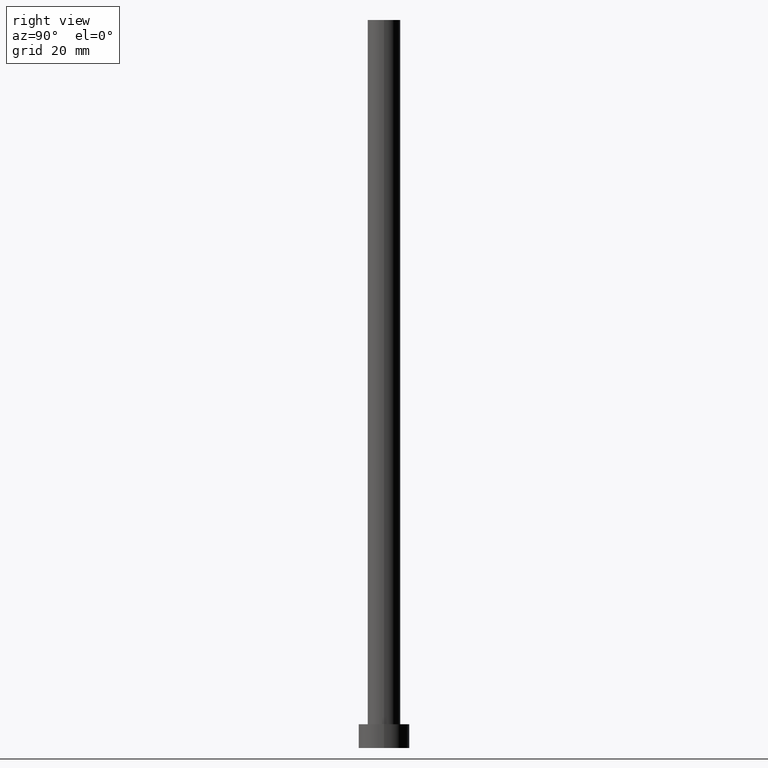
[diagram: clean part render]
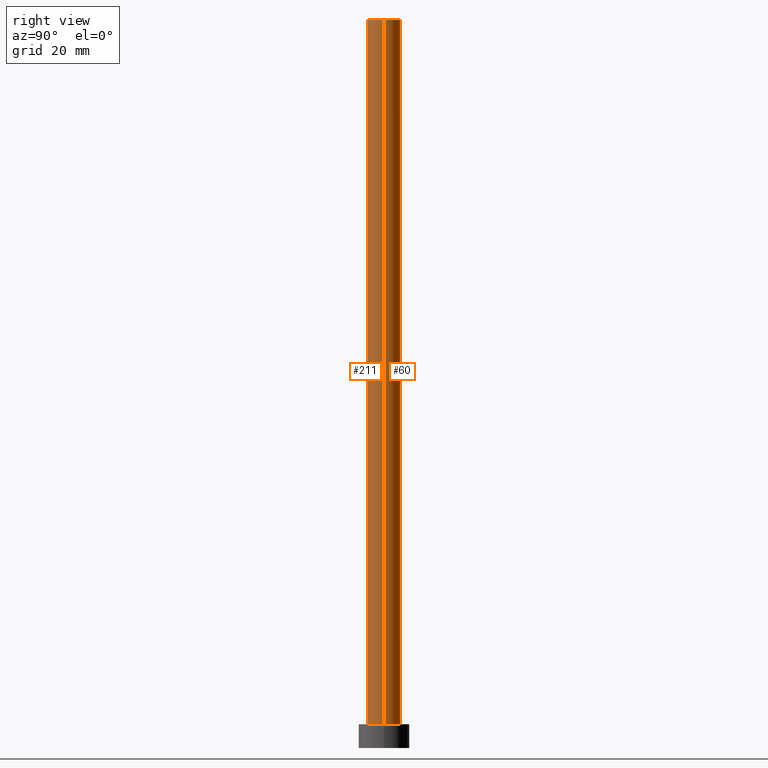
[diagram: same view with one multi-face feature highlighted, each face labeled with its STEP entity id]
A machine part, right view. The highlighted faces form ONE feature: a constant-radius fillet chain: 2 tangent blend faces with common blend radius 4.5 mm. The faces share edges in the B-rep.
Their STEP definitions:
[1] entity #60 (Cylinder):
#4 = DIRECTION ( 'NONE',  ( -0.000000000000000000, -0.000000000000000000, -1.000000000000000000 ) ) ;
#27 = CARTESIAN_POINT ( 'NONE',  ( 4.500000000000000888, 5.510910596163089556E-16, 6.500000000000000000 ) ) ;
#33 = CYLINDRICAL_SURFACE ( 'NONE', #214, 4.500000000000000888 ) ;
#37 = ORIENTED_EDGE ( 'NONE', *, *, #243, .T. ) ;
#49 = DIRECTION ( 'NONE',  ( 0.000000000000000000, 0.000000000000000000, 1.000000000000000000 ) ) ;
#50 = LINE ( 'NONE', #51, #159 ) ;
#51 = CARTESIAN_POINT ( 'NONE',  ( 4.500000000000000888, 5.510910596163089556E-16, 200.0000000000000000 ) ) ;
#55 = ORIENTED_EDGE ( 'NONE', *, *, #111, .F. ) ;
#60 = ADVANCED_FACE ( 'NONE', ( #160 ), #33, .T. ) ;
#61 = CARTESIAN_POINT ( 'NONE',  ( 4.500000000000000888, 5.510910596163089556E-16, 200.0000000000000000 ) ) ;
#66 = EDGE_CURVE ( 'NONE', #209, #146, #50, .T. ) ;
#72 = ORIENTED_EDGE ( 'NONE', *, *, #66, .T. ) ;
#74 = DIRECTION ( 'NONE',  ( 0.000000000000000000, 0.000000000000000000, 1.000000000000000000 ) ) ;
#83 = DIRECTION ( 'NONE',  ( -0.000000000000000000, -0.000000000000000000, -1.000000000000000000 ) ) ;
#87 = CIRCLE ( 'NONE', #234, 4.500000000000000888 ) ;
#110 = AXIS2_PLACEMENT_3D ( 'NONE', #225, #74, #228 ) ;
#111 = EDGE_CURVE ( 'NONE', #117, #206, #122, .T. ) ;
#117 = VERTEX_POINT ( 'NONE', #180 ) ;
#122 = LINE ( 'NONE', #235, #124 ) ;
#124 = VECTOR ( 'NONE', #192, 1000.000000000000000 ) ;
#125 = DIRECTION ( 'NONE',  ( 1.000000000000000000, 0.000000000000000000, 0.000000000000000000 ) ) ;
#136 = CIRCLE ( 'NONE', #110, 4.500000000000000888 ) ;
#142 = CARTESIAN_POINT ( 'NONE',  ( 0.000000000000000000, 0.000000000000000000, 200.0000000000000000 ) ) ;
#146 = VERTEX_POINT ( 'NONE', #27 ) ;
#159 = VECTOR ( 'NONE', #83, 1000.000000000000000 ) ;
#160 = FACE_OUTER_BOUND ( 'NONE', #218, .T. ) ;
#169 = EDGE_CURVE ( 'NONE', #209, #117, #87, .T. ) ;
#179 = CARTESIAN_POINT ( 'NONE',  ( 0.000000000000000000, 0.000000000000000000, 200.0000000000000000 ) ) ;
#180 = CARTESIAN_POINT ( 'NONE',  ( -4.500000000000000888, 0.000000000000000000, 200.0000000000000000 ) ) ;
#192 = DIRECTION ( 'NONE',  ( -0.000000000000000000, -0.000000000000000000, -1.000000000000000000 ) ) ;
#206 = VERTEX_POINT ( 'NONE', #244 ) ;
#209 = VERTEX_POINT ( 'NONE', #61 ) ;
#214 = AXIS2_PLACEMENT_3D ( 'NONE', #179, #4, #216 ) ;
#216 = DIRECTION ( 'NONE',  ( -1.000000000000000000, 0.000000000000000000, 0.000000000000000000 ) ) ;
#218 = EDGE_LOOP ( 'NONE', ( #226, #72, #37, #55 ) ) ;
#225 = CARTESIAN_POINT ( 'NONE',  ( 0.000000000000000000, 0.000000000000000000, 6.500000000000000000 ) ) ;
#226 = ORIENTED_EDGE ( 'NONE', *, *, #169, .F. ) ;
#228 = DIRECTION ( 'NONE',  ( 1.000000000000000000, 0.000000000000000000, 0.000000000000000000 ) ) ;
#234 = AXIS2_PLACEMENT_3D ( 'NONE', #142, #49, #125 ) ;
#235 = CARTESIAN_POINT ( 'NONE',  ( -4.500000000000000888, 0.000000000000000000, 200.0000000000000000 ) ) ;
#243 = EDGE_CURVE ( 'NONE', #146, #206, #136, .T. ) ;
#244 = CARTESIAN_POINT ( 'NONE',  ( -4.500000000000000888, 0.000000000000000000, 6.500000000000000000 ) ) ;
[2] entity #211 (Cylinder):
#12 = AXIS2_PLACEMENT_3D ( 'NONE', #64, #127, #193 ) ;
#27 = CARTESIAN_POINT ( 'NONE',  ( 4.500000000000000888, 5.510910596163089556E-16, 6.500000000000000000 ) ) ;
#29 = CIRCLE ( 'NONE', #12, 4.500000000000000888 ) ;
#32 = DIRECTION ( 'NONE',  ( 0.000000000000000000, 0.000000000000000000, 1.000000000000000000 ) ) ;
#50 = LINE ( 'NONE', #51, #159 ) ;
#51 = CARTESIAN_POINT ( 'NONE',  ( 4.500000000000000888, 5.510910596163089556E-16, 200.0000000000000000 ) ) ;
#61 = CARTESIAN_POINT ( 'NONE',  ( 4.500000000000000888, 5.510910596163089556E-16, 200.0000000000000000 ) ) ;
#64 = CARTESIAN_POINT ( 'NONE',  ( 0.000000000000000000, 0.000000000000000000, 6.500000000000000000 ) ) ;
#66 = EDGE_CURVE ( 'NONE', #209, #146, #50, .T. ) ;
#69 = FACE_OUTER_BOUND ( 'NONE', #73, .T. ) ;
#70 = AXIS2_PLACEMENT_3D ( 'NONE', #135, #184, #98 ) ;
#73 = EDGE_LOOP ( 'NONE', ( #165, #172, #247, #163 ) ) ;
#83 = DIRECTION ( 'NONE',  ( -0.000000000000000000, -0.000000000000000000, -1.000000000000000000 ) ) ;
#98 = DIRECTION ( 'NONE',  ( -1.000000000000000000, 0.000000000000000000, 0.000000000000000000 ) ) ;
#105 = DIRECTION ( 'NONE',  ( 1.000000000000000000, 0.000000000000000000, 0.000000000000000000 ) ) ;
#111 = EDGE_CURVE ( 'NONE', #117, #206, #122, .T. ) ;
#117 = VERTEX_POINT ( 'NONE', #180 ) ;
#118 = AXIS2_PLACEMENT_3D ( 'NONE', #195, #32, #105 ) ;
#122 = LINE ( 'NONE', #235, #124 ) ;
#124 = VECTOR ( 'NONE', #192, 1000.000000000000000 ) ;
#127 = DIRECTION ( 'NONE',  ( 0.000000000000000000, 0.000000000000000000, 1.000000000000000000 ) ) ;
#130 = EDGE_CURVE ( 'NONE', #206, #146, #29, .T. ) ;
#135 = CARTESIAN_POINT ( 'NONE',  ( 0.000000000000000000, 0.000000000000000000, 200.0000000000000000 ) ) ;
#146 = VERTEX_POINT ( 'NONE', #27 ) ;
#159 = VECTOR ( 'NONE', #83, 1000.000000000000000 ) ;
#163 = ORIENTED_EDGE ( 'NONE', *, *, #130, .T. ) ;
#165 = ORIENTED_EDGE ( 'NONE', *, *, #66, .F. ) ;
#172 = ORIENTED_EDGE ( 'NONE', *, *, #185, .F. ) ;
#180 = CARTESIAN_POINT ( 'NONE',  ( -4.500000000000000888, 0.000000000000000000, 200.0000000000000000 ) ) ;
#184 = DIRECTION ( 'NONE',  ( -0.000000000000000000, -0.000000000000000000, -1.000000000000000000 ) ) ;
#185 = EDGE_CURVE ( 'NONE', #117, #209, #223, .T. ) ;
#192 = DIRECTION ( 'NONE',  ( -0.000000000000000000, -0.000000000000000000, -1.000000000000000000 ) ) ;
#193 = DIRECTION ( 'NONE',  ( 1.000000000000000000, 0.000000000000000000, 0.000000000000000000 ) ) ;
#195 = CARTESIAN_POINT ( 'NONE',  ( 0.000000000000000000, 0.000000000000000000, 200.0000000000000000 ) ) ;
#206 = VERTEX_POINT ( 'NONE', #244 ) ;
#209 = VERTEX_POINT ( 'NONE', #61 ) ;
#211 = ADVANCED_FACE ( 'NONE', ( #69 ), #229, .T. ) ;
#223 = CIRCLE ( 'NONE', #118, 4.500000000000000888 ) ;
#229 = CYLINDRICAL_SURFACE ( 'NONE', #70, 4.500000000000000888 ) ;
#235 = CARTESIAN_POINT ( 'NONE',  ( -4.500000000000000888, 0.000000000000000000, 200.0000000000000000 ) ) ;
#244 = CARTESIAN_POINT ( 'NONE',  ( -4.500000000000000888, 0.000000000000000000, 6.500000000000000000 ) ) ;
#247 = ORIENTED_EDGE ( 'NONE', *, *, #111, .T. ) ;